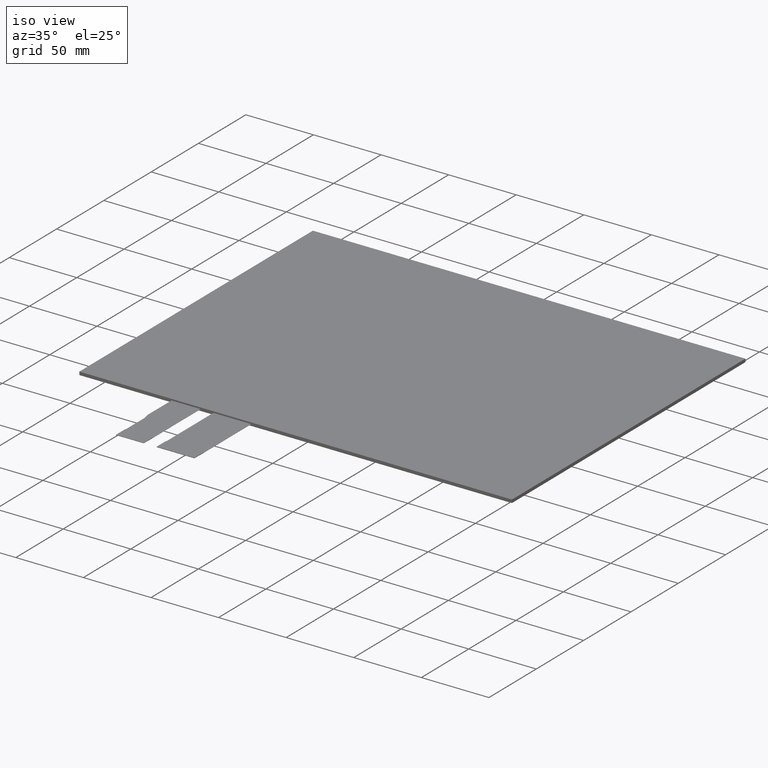
[diagram: clean part render]
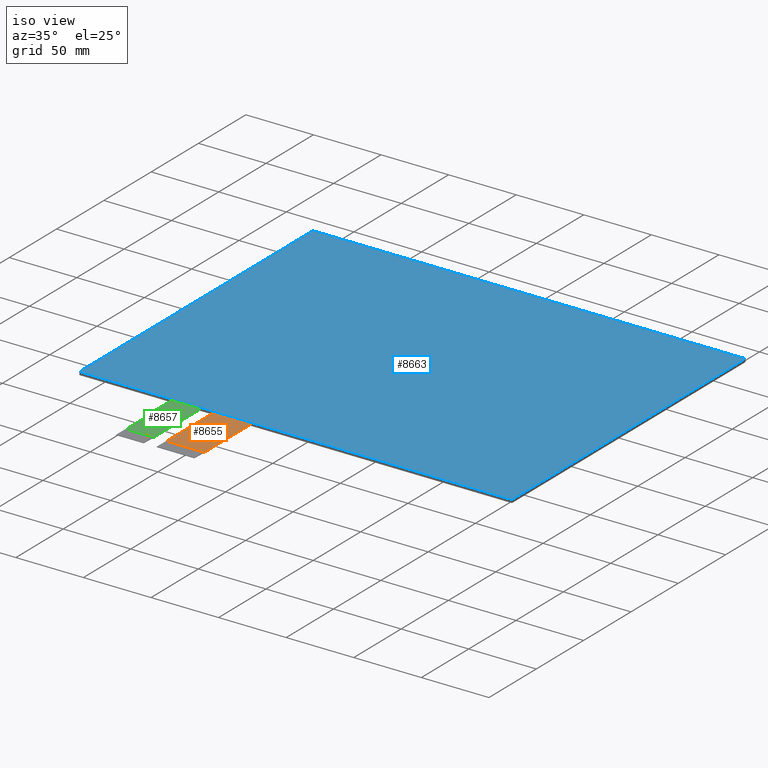
[diagram: same view with three faces highlighted in distinct colors, each labeled with its STEP entity id]
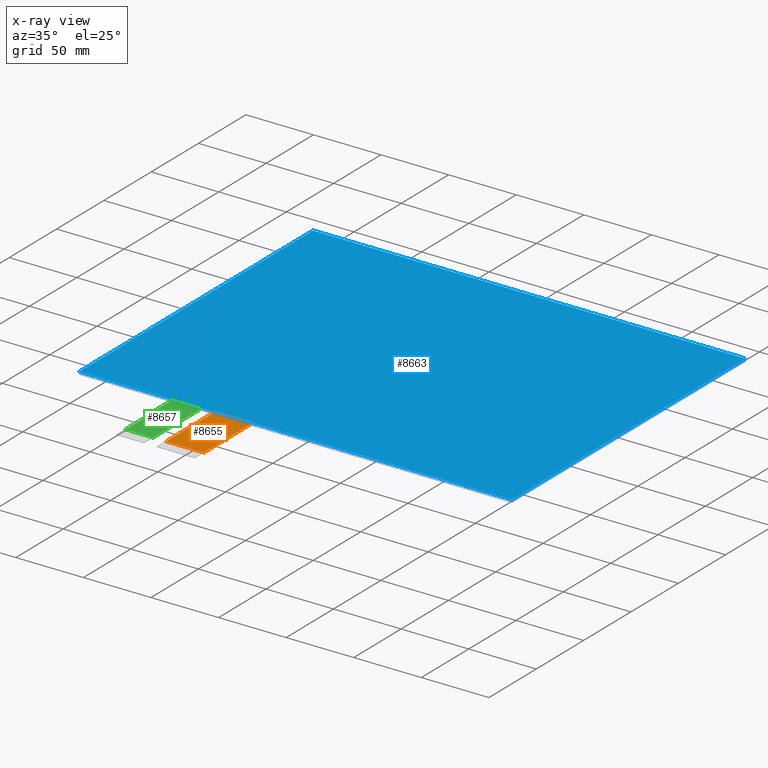
[diagram: x-ray of the same camera — body ghosted, the three highlighted faces saturated]
A machine part, iso view with three faces highlighted in distinct colors.
The next image is the same camera in x-ray (body ghosted, the three faces saturated) — at least one of them is partly hidden behind the body in this view.
Their STEP definitions:

[orange] entity #8655 — the highlighted planar face has unit normal (0, 0, 1).
#487=PLANE('',#9099);
#899=FACE_OUTER_BOUND('',#1311,.T.);
#1311=EDGE_LOOP('',(#8198,#8199,#8200,#8201));
#1745=LINE('',#12045,#2957);
#2510=LINE('',#13575,#3722);
#2516=LINE('',#13587,#3728);
#2519=LINE('',#13592,#3731);
#2957=VECTOR('',#9589,10.);
#3722=VECTOR('',#11120,10.);
#3728=VECTOR('',#11134,10.);
#3731=VECTOR('',#11139,10.);
#4179=VERTEX_POINT('',#12042);
#4180=VERTEX_POINT('',#12044);
#4562=VERTEX_POINT('',#13574);
#4564=VERTEX_POINT('',#13586);
#5009=EDGE_CURVE('',#4180,#4179,#1745,.T.);
#5774=EDGE_CURVE('',#4562,#4180,#2510,.T.);
#5780=EDGE_CURVE('',#4564,#4562,#2516,.T.);
#5783=EDGE_CURVE('',#4564,#4179,#2519,.T.);
#8198=ORIENTED_EDGE('',*,*,#5774,.T.);
#8199=ORIENTED_EDGE('',*,*,#5009,.T.);
#8200=ORIENTED_EDGE('',*,*,#5783,.F.);
#8201=ORIENTED_EDGE('',*,*,#5780,.T.);
#8655=ADVANCED_FACE('',(#899),#487,.T.);
#9099=AXIS2_PLACEMENT_3D('',#13591,#11137,#11138);
#9589=DIRECTION('',(7.40148683083438E-17,1.,0.));
#11120=DIRECTION('',(1.,0.,0.));
#11134=DIRECTION('',(2.96059473233375E-16,-1.,0.));
#11137=DIRECTION('center_axis',(0.,0.,1.));
#11138=DIRECTION('ref_axis',(1.,0.,0.));
#11139=DIRECTION('',(1.,1.11022302462516E-16,0.));
#12042=CARTESIAN_POINT('',(-33.18,-125.31,-1.1));
#12044=CARTESIAN_POINT('',(-33.18,-175.31,-1.1));
#12045=CARTESIAN_POINT('',(-33.18,-185.31,-1.1));
#13574=CARTESIAN_POINT('',(-61.18,-175.31,-1.1));
#13575=CARTESIAN_POINT('',(-40.18,-175.31,-1.1));
#13586=CARTESIAN_POINT('',(-61.18,-125.31,-1.1));
#13587=CARTESIAN_POINT('',(-61.18,-125.31,-1.1));
#13591=CARTESIAN_POINT('Origin',(-47.18,-155.31,-1.1));
#13592=CARTESIAN_POINT('',(56.25,-125.31,-1.1));

[blue] entity #8663 — the highlighted planar face has unit normal (0, 0, 1).
#495=PLANE('',#9107);
#907=FACE_OUTER_BOUND('',#1321,.T.);
#1321=EDGE_LOOP('',(#8242,#8243,#8244,#8245));
#2522=LINE('',#13600,#3734);
#2526=LINE('',#13608,#3738);
#2529=LINE('',#13614,#3741);
#2532=LINE('',#13619,#3744);
#3734=VECTOR('',#11148,10.);
#3738=VECTOR('',#11154,10.);
#3741=VECTOR('',#11159,10.);
#3744=VECTOR('',#11164,10.);
#4566=VERTEX_POINT('',#13598);
#4567=VERTEX_POINT('',#13599);
#4570=VERTEX_POINT('',#13607);
#4572=VERTEX_POINT('',#13613);
#5786=EDGE_CURVE('',#4566,#4567,#2522,.T.);
#5790=EDGE_CURVE('',#4567,#4570,#2526,.T.);
#5793=EDGE_CURVE('',#4570,#4572,#2529,.T.);
#5796=EDGE_CURVE('',#4572,#4566,#2532,.T.);
#8242=ORIENTED_EDGE('',*,*,#5796,.T.);
#8243=ORIENTED_EDGE('',*,*,#5786,.T.);
#8244=ORIENTED_EDGE('',*,*,#5790,.T.);
#8245=ORIENTED_EDGE('',*,*,#5793,.T.);
#8663=ADVANCED_FACE('',(#907),#495,.T.);
#9107=AXIS2_PLACEMENT_3D('',#13622,#11168,#11169);
#11148=DIRECTION('',(-1.,0.,0.));
#11154=DIRECTION('',(2.8801894436972E-16,-1.,0.));
#11159=DIRECTION('',(1.,1.11022302462516E-16,0.));
#11164=DIRECTION('',(-7.20047360924301E-17,1.,0.));
#11168=DIRECTION('center_axis',(0.,0.,1.));
#11169=DIRECTION('ref_axis',(1.,0.,0.));
#13598=CARTESIAN_POINT('',(159.68,121.39,0.));
#13599=CARTESIAN_POINT('',(-160.32,121.39,0.));
#13600=CARTESIAN_POINT('',(159.68,121.39,0.));
#13607=CARTESIAN_POINT('',(-160.32,-125.31,0.));
#13608=CARTESIAN_POINT('',(-160.32,121.39,0.));
#13613=CARTESIAN_POINT('',(159.68,-125.31,0.));
#13614=CARTESIAN_POINT('',(-160.32,-125.31,0.));
#13619=CARTESIAN_POINT('',(159.68,-125.31,0.));
#13622=CARTESIAN_POINT('Origin',(-0.0200000000000422,8.88178419700125E-15,
0.));

[green] entity #8657 — the highlighted planar face has unit normal (0, 0, 1).
#489=PLANE('',#9101);
#901=FACE_OUTER_BOUND('',#1313,.T.);
#1313=EDGE_LOOP('',(#8206,#8207,#8208,#8209,#8210,#8211,#8212,#8213));
#1330=LINE('',#11196,#2542);
#1334=LINE('',#11205,#2546);
#1507=LINE('',#11560,#2719);
#2509=LINE('',#13572,#3721);
#2514=LINE('',#13582,#3726);
#2521=LINE('',#13596,#3733);
#2542=VECTOR('',#9130,10.);
#2546=VECTOR('',#9140,10.);
#2719=VECTOR('',#9331,10.);
#3721=VECTOR('',#11117,10.);
#3726=VECTOR('',#11128,10.);
#3733=VECTOR('',#11145,10.);
#3747=CIRCLE('',#8686,5.);
#3749=CIRCLE('',#8691,5.);
#3760=VERTEX_POINT('',#11175);
#3761=VERTEX_POINT('',#11177);
#3768=VERTEX_POINT('',#11195);
#3769=VERTEX_POINT('',#11199);
#3770=VERTEX_POINT('',#11200);
#3942=VERTEX_POINT('',#11557);
#3943=VERTEX_POINT('',#11559);
#4561=VERTEX_POINT('',#13570);
#4576=EDGE_CURVE('',#3760,#3761,#3747,.T.);
#4585=EDGE_CURVE('',#3768,#3761,#1330,.T.);
#4587=EDGE_CURVE('',#3769,#3770,#3749,.T.);
#4590=EDGE_CURVE('',#3760,#3770,#1334,.T.);
#4767=EDGE_CURVE('',#3943,#3942,#1507,.T.);
#5773=EDGE_CURVE('',#3769,#4561,#2509,.T.);
#5778=EDGE_CURVE('',#4561,#3943,#2514,.T.);
#5785=EDGE_CURVE('',#3768,#3942,#2521,.T.);
#8206=ORIENTED_EDGE('',*,*,#4576,.F.);
#8207=ORIENTED_EDGE('',*,*,#4590,.T.);
#8208=ORIENTED_EDGE('',*,*,#4587,.F.);
#8209=ORIENTED_EDGE('',*,*,#5773,.T.);
#8210=ORIENTED_EDGE('',*,*,#5778,.T.);
#8211=ORIENTED_EDGE('',*,*,#4767,.T.);
#8212=ORIENTED_EDGE('',*,*,#5785,.F.);
#8213=ORIENTED_EDGE('',*,*,#4585,.T.);
#8657=ADVANCED_FACE('',(#901),#489,.T.);
#8686=AXIS2_PLACEMENT_3D('',#11178,#9115,#9116);
#8691=AXIS2_PLACEMENT_3D('',#11201,#9134,#9135);
#9101=AXIS2_PLACEMENT_3D('',#13595,#11143,#11144);
#9115=DIRECTION('center_axis',(0.,0.,-1.));
#9116=DIRECTION('ref_axis',(-0.995396198367179,-0.0958457525202229,0.));
#9130=DIRECTION('',(0.,-1.,0.));
#9134=DIRECTION('center_axis',(0.,0.,1.));
#9135=DIRECTION('ref_axis',(0.995396198367179,0.0958457525202229,0.));
#9140=DIRECTION('',(0.190808995376542,-0.981627183447665,0.));
#9331=DIRECTION('',(-4.44089209850063E-16,1.,0.));
#11117=DIRECTION('',(0.,-1.,0.));
#11128=DIRECTION('',(1.,0.,0.));
#11143=DIRECTION('center_axis',(0.,0.,1.));
#11144=DIRECTION('ref_axis',(1.,0.,0.));
#11145=DIRECTION('',(1.,1.11022302462516E-16,0.));
#11175=CARTESIAN_POINT('',(-92.0881359172383,-150.918045719925,-1.1));
#11177=CARTESIAN_POINT('',(-92.18,-149.964000743042,-1.1));
#11178=CARTESIAN_POINT('Origin',(-87.18,-149.964000743042,-1.1));
#11195=CARTESIAN_POINT('',(-92.18,-125.31,-1.1));
#11196=CARTESIAN_POINT('',(-92.18,-125.31,-1.1));
#11199=CARTESIAN_POINT('',(-91.18,-156.071445240988,-1.1));
#11200=CARTESIAN_POINT('',(-91.2718640827617,-155.117400264105,-1.1));
#11201=CARTESIAN_POINT('Origin',(-96.18,-156.071445240988,-1.1));
#11205=CARTESIAN_POINT('',(-92.18,-150.44544598403,-1.1));
#11557=CARTESIAN_POINT('',(-70.68,-125.31,-1.1));
#11559=CARTESIAN_POINT('',(-70.68,-175.31,-1.1));
#11560=CARTESIAN_POINT('',(-70.68,-185.31,-1.1));
#13570=CARTESIAN_POINT('',(-91.18,-175.31,-1.1));
#13572=CARTESIAN_POINT('',(-91.18,-155.59,-1.1));
#13582=CARTESIAN_POINT('',(-76.055,-175.31,-1.1));
#13595=CARTESIAN_POINT('Origin',(-81.43,-155.31,-1.1));
#13596=CARTESIAN_POINT('',(39.125,-125.31,-1.1));